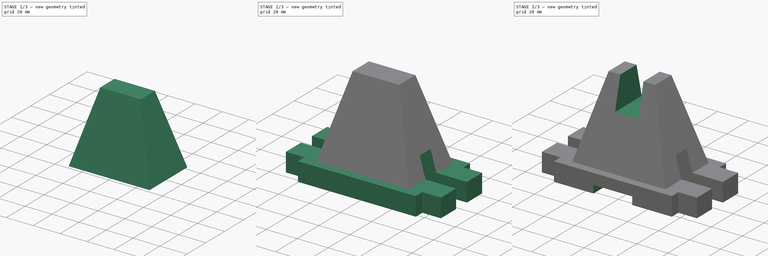
[diagram: build sequence overview — one tinted view per stage of 3, left to right]
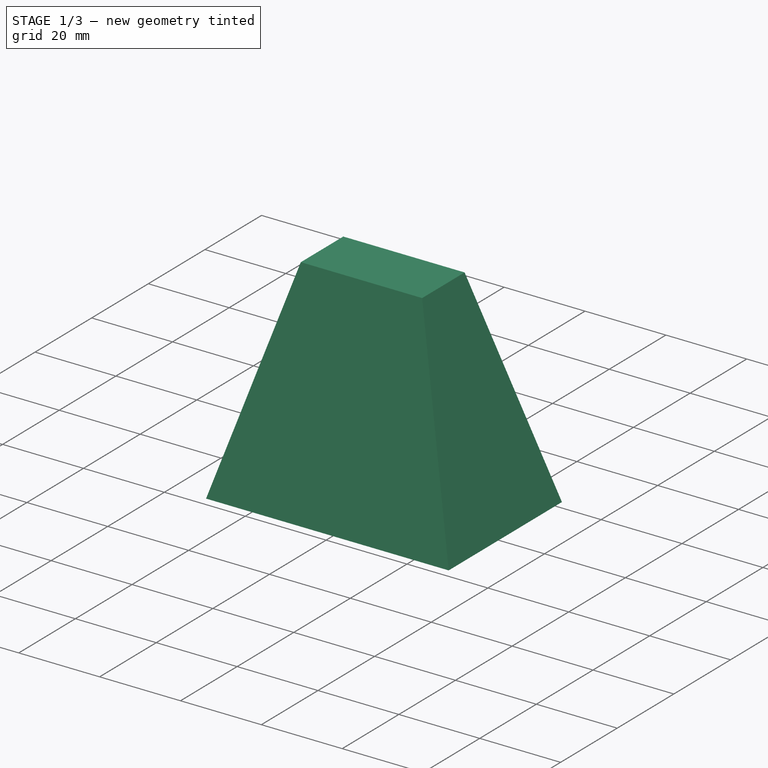
[diagram: stage 1 of 3 — iso view after this stage's code; geometry added in this stage tinted green]
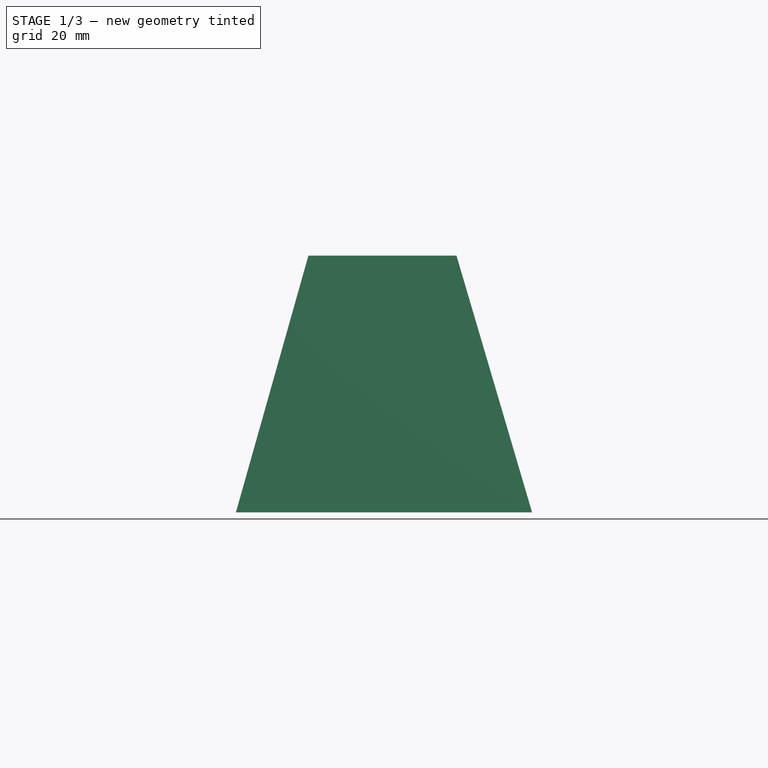
[diagram: stage 1 of 3 — front view after this stage's code; geometry added in this stage tinted green]
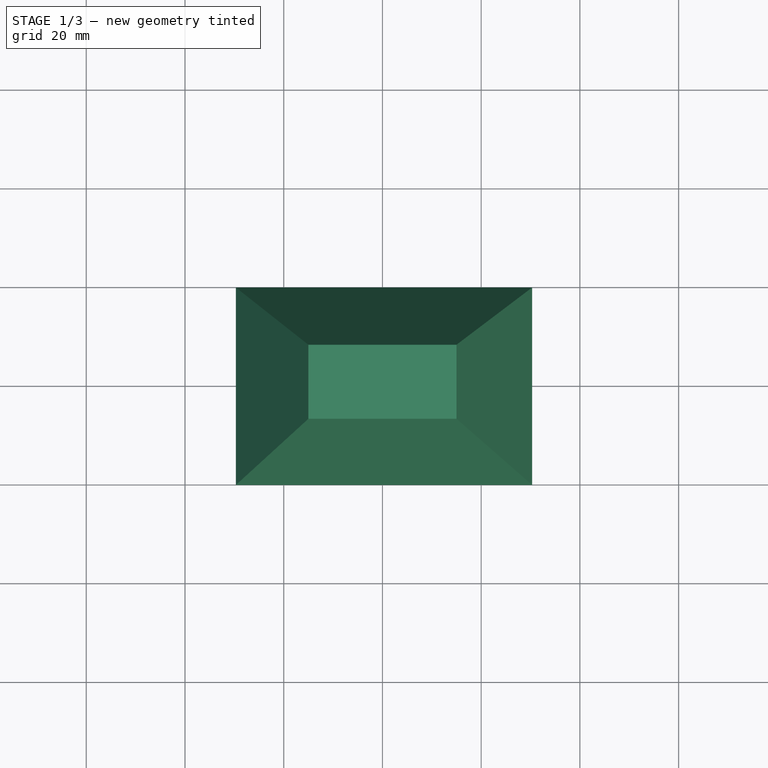
[diagram: stage 1 of 3 — top view after this stage's code; geometry added in this stage tinted green]
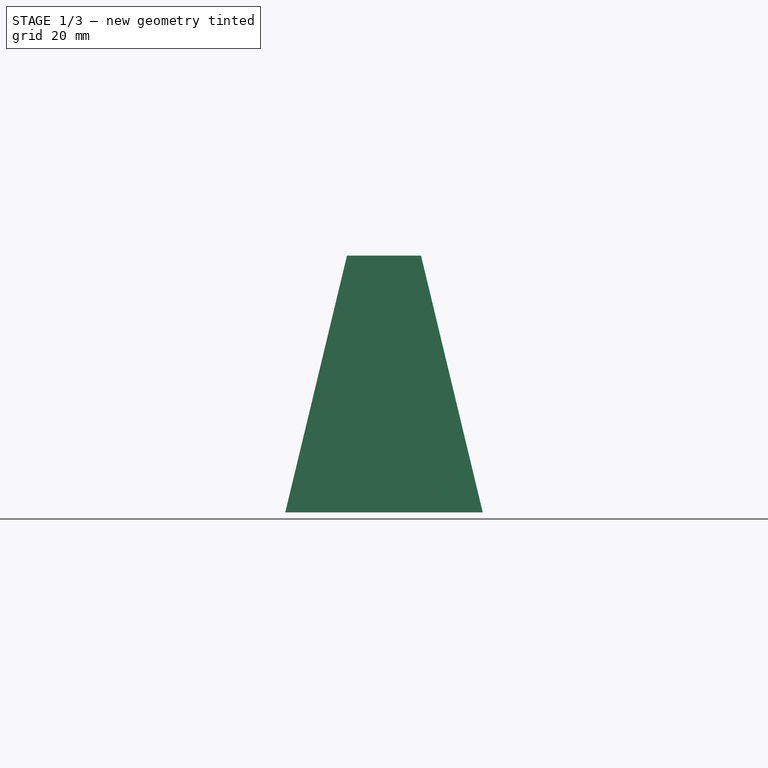
[diagram: stage 1 of 3 — right view after this stage's code; geometry added in this stage tinted green]
FCSTD DOCUMENT  (FreeCAD 0.14R3702 (Git))
Label: ejer10
License: CC-BY 3.0
LicenseURL: http://creativecommons.org/licenses/by/3.0/
objects: Sketcher::SketchObject×6, PartDesign::Pocket×3, PartDesign::Pad×1, Part::Loft×1, Part::MultiFuse×1
note: 16 computed .brp shape members not serialized (recipe doc carries the construction recipe); baked Part::Feature solids carry a one-line shape summary decoded from their .brp

FEATURE [Sketcher::SketchObject] Sketch
  sketch-geometry (12):
    g0: LineSegment StartX=-38 StartY=-25 StartZ=0 EndX=38 EndY=-25 EndZ=0
    g1: LineSegment StartX=38 StartY=-25 StartZ=0 EndX=38 EndY=-19 EndZ=0
    g2: LineSegment StartX=38 StartY=-19 StartZ=0 EndX=50 EndY=-19 EndZ=0
    g3: LineSegment StartX=50 StartY=-19 StartZ=0 EndX=50 EndY=19 EndZ=0
    g4: LineSegment StartX=50 StartY=19 StartZ=0 EndX=38 EndY=19 EndZ=0
    g5: LineSegment StartX=38 StartY=19 StartZ=0 EndX=38 EndY=25 EndZ=0
    g6: LineSegment StartX=38 StartY=25 StartZ=0 EndX=-38 EndY=25 EndZ=0
    g7: LineSegment StartX=-38 StartY=25 StartZ=0 EndX=-38 EndY=19 EndZ=0
    g8: LineSegment StartX=-38 StartY=19 StartZ=0 EndX=-50 EndY=19 EndZ=0
    g9: LineSegment StartX=-50 StartY=19 StartZ=0 EndX=-50 EndY=-19 EndZ=0
    g10: LineSegment StartX=-50 StartY=-19 StartZ=0 EndX=-38 EndY=-19 EndZ=0
    g11: LineSegment StartX=-38 StartY=-19 StartZ=0 EndX=-38 EndY=-25 EndZ=0
  constraints (38):
    c: Horizontal(g0)
    c: Coincident(g0,g1)
    c: Coincident(g1,g2)
    c: Coincident(g2,g3)
    c: Vertical(g3)
    c: Coincident(g3,g4)
    c: Coincident(g4,g5)
    c: Coincident(g5,g6)
    c: Coincident(g6,g7)
    c: Coincident(g7,g8)
    c: Coincident(g8,g9)
    c: Vertical(g9)
    c: Horizontal(g10)
    c: Coincident(g10,g11)
    c: Coincident(g0,g11)
    c: Horizontal(g8)
    c: Horizontal(g4)
    c: Vertical(g11)
    c: Vertical(g7)
    c: Vertical(g5)
    c: Vertical(g1)
    c: Horizontal(g2)
    c: Equal(g6,g0)
    c: DistanceX(g6) = -76
    c: Equal(g3,g9)
    c: DistanceY(g3) = 38
    c: Coincident(g10,g9)
    c: Equal(g7,g5)
    c: Equal(g5,g1)
    c: Equal(g1,g11)
    c: DistanceY(g11) = -6
    c: Equal(g2,g4)
    c: Equal(g4,g8)
    c: Equal(g8,g10)
    c: DistanceX(g10) = 12
    c: Symmetric(g5,g6,g-2)
    c: Symmetric(g0,g6,g-1)
    c: DistanceX(g3,g8) = -100
FEATURE [PartDesign::Pad] Pad
  Length = 12
  Length2 = 100
  Sketch = -> Sketch
  Type = 0
FEATURE [Sketcher::SketchObject] Sketch001
  ExternalGeometry = -> [Pad]
  Placement = pos=(0,0,12) rot=(0,0,1;0rad)
  Support = -> Pad [Face14]
  sketch-geometry (4):
    g0: LineSegment StartX=-29.6845 StartY=20 StartZ=0 EndX=30.3155 EndY=20 EndZ=0
    g1: LineSegment StartX=30.3155 StartY=20 StartZ=0 EndX=30.3155 EndY=-20 EndZ=0
    g2: LineSegment StartX=30.3155 StartY=-20 StartZ=0 EndX=-29.6845 EndY=-20 EndZ=0
    g3: LineSegment StartX=-29.6845 StartY=-20 StartZ=0 EndX=-29.6845 EndY=20 EndZ=0
  constraints (11):
    c: Coincident(g0,g1)
    c: Coincident(g1,g2)
    c: Coincident(g2,g3)
    c: Coincident(g3,g0)
    c: Horizontal(g0)
    c: Horizontal(g2)
    c: Vertical(g1)
    c: Vertical(g3)
    c: Symmetric(g0,g2,g-1)
    c: DistanceX(g0) = 60
    c: DistanceY(g1) = -40
FEATURE [Sketcher::SketchObject] Sketch002
  Placement = pos=(0,0,64) rot=(0,0,1;0rad)
  sketch-geometry (4):
    g0: LineSegment StartX=-15 StartY=7.5 StartZ=0 EndX=15 EndY=7.5 EndZ=0
    g1: LineSegment StartX=15 StartY=7.5 StartZ=0 EndX=15 EndY=-7.5 EndZ=0
    g2: LineSegment StartX=15 StartY=-7.5 StartZ=0 EndX=-15 EndY=-7.5 EndZ=0
    g3: LineSegment StartX=-15 StartY=-7.5 StartZ=0 EndX=-15 EndY=7.5 EndZ=0
  constraints (12):
    c: Coincident(g0,g1)
    c: Coincident(g1,g2)
    c: Coincident(g2,g3)
    c: Coincident(g3,g0)
    c: Horizontal(g0)
    c: Horizontal(g2)
    c: Vertical(g1)
    c: Vertical(g3)
    c: Symmetric(g0,g0,g-2)
    c: Symmetric(g2,g0,g-1)
    c: DistanceX(g2) = -30
    c: DistanceY(g3) = 15
FEATURE [Part::Loft] Loft
  Closed = false
  Ruled = false
  Sections = -> [Sketch002,Sketch001]
  Solid = true
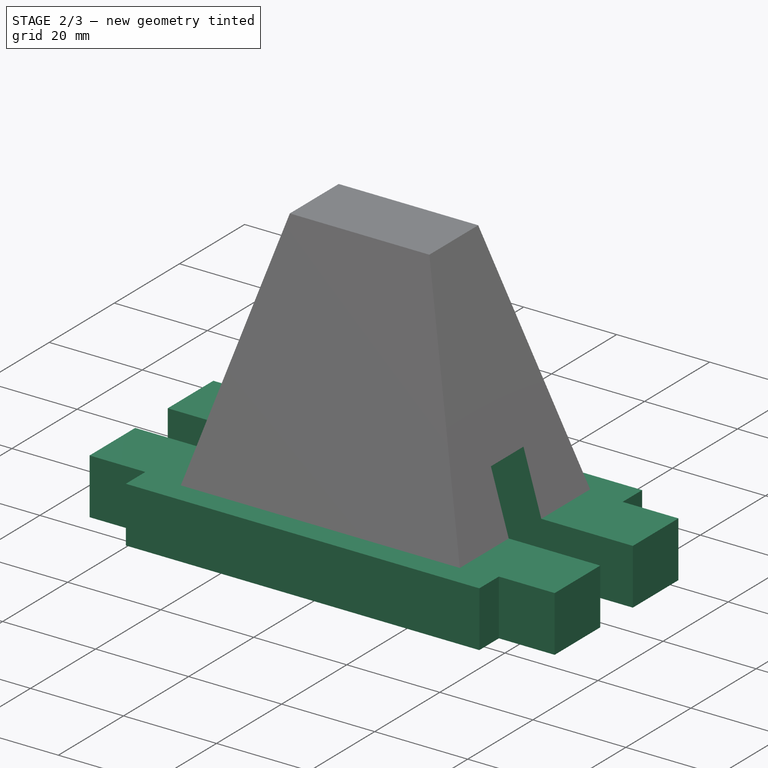
[diagram: stage 2 of 3 — iso view after this stage's code; geometry added in this stage tinted green]
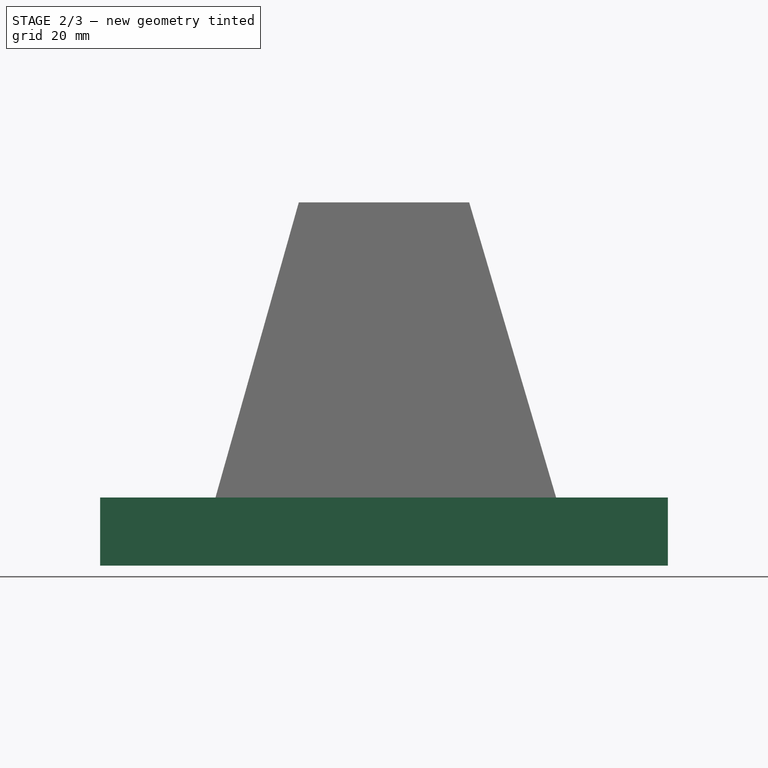
[diagram: stage 2 of 3 — front view after this stage's code; geometry added in this stage tinted green]
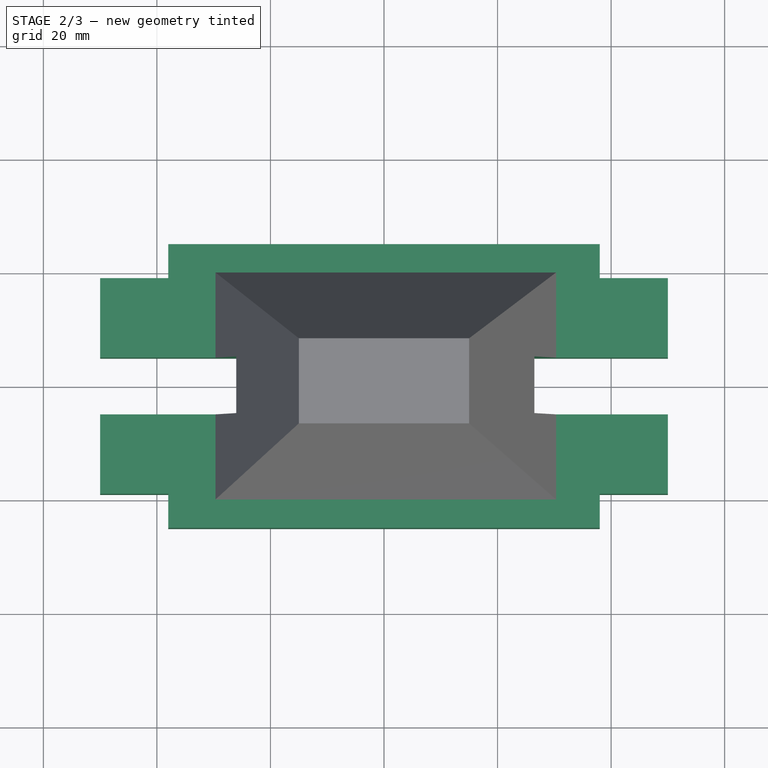
[diagram: stage 2 of 3 — top view after this stage's code; geometry added in this stage tinted green]
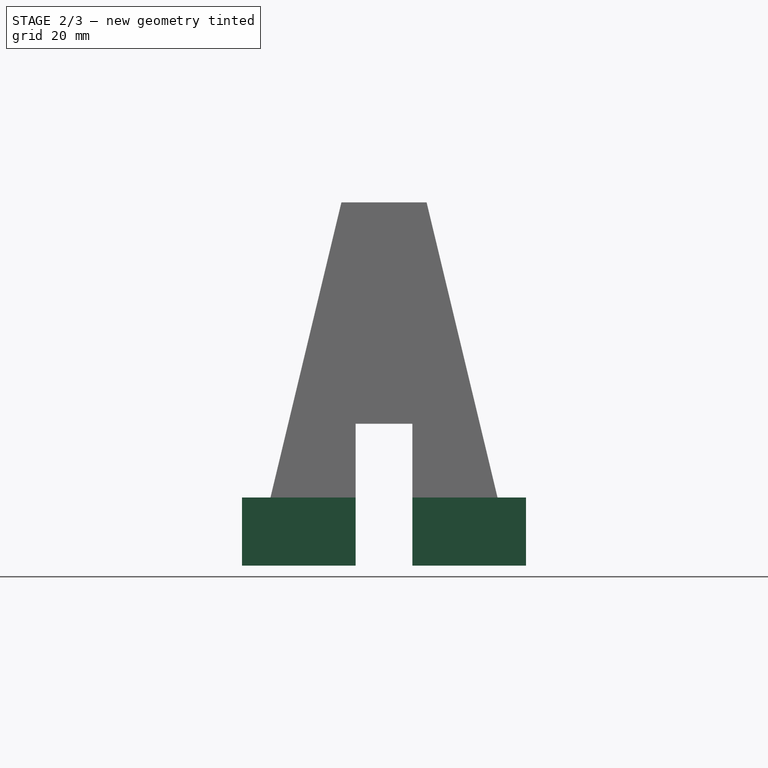
[diagram: stage 2 of 3 — right view after this stage's code; geometry added in this stage tinted green]
FEATURE [Part::MultiFuse] Fusion
  Shapes = -> [Pad,Loft]
FEATURE [Sketcher::SketchObject] Sketch003
  Placement = pos=(50,0,0) rot=(0.57735,0.57735,0.57735;2.0944rad)
  Support = -> Fusion [Face8]
  sketch-geometry (4):
    g0: LineSegment StartX=-5 StartY=0 StartZ=0 EndX=5 EndY=0 EndZ=0
    g1: LineSegment StartX=5 StartY=0 StartZ=0 EndX=5 EndY=25 EndZ=0
    g2: LineSegment StartX=5 StartY=25 StartZ=0 EndX=-5 EndY=25 EndZ=0
    g3: LineSegment StartX=-5 StartY=25 StartZ=0 EndX=-5 EndY=0 EndZ=0
  constraints (12):
    c: Coincident(g0,g1)
    c: Coincident(g1,g2)
    c: Coincident(g2,g3)
    c: Coincident(g3,g0)
    c: Horizontal(g0)
    c: Horizontal(g2)
    c: Vertical(g1)
    c: Vertical(g3)
    c: Symmetric(g1,g2,g-2)
    c: PointOnObject(g0,g-1)
    c: DistanceY(g3) = -25
    c: DistanceX(g2) = -10
FEATURE [PartDesign::Pocket] Pocket
  Length = 5
  Sketch = -> Sketch003
  Type = 1
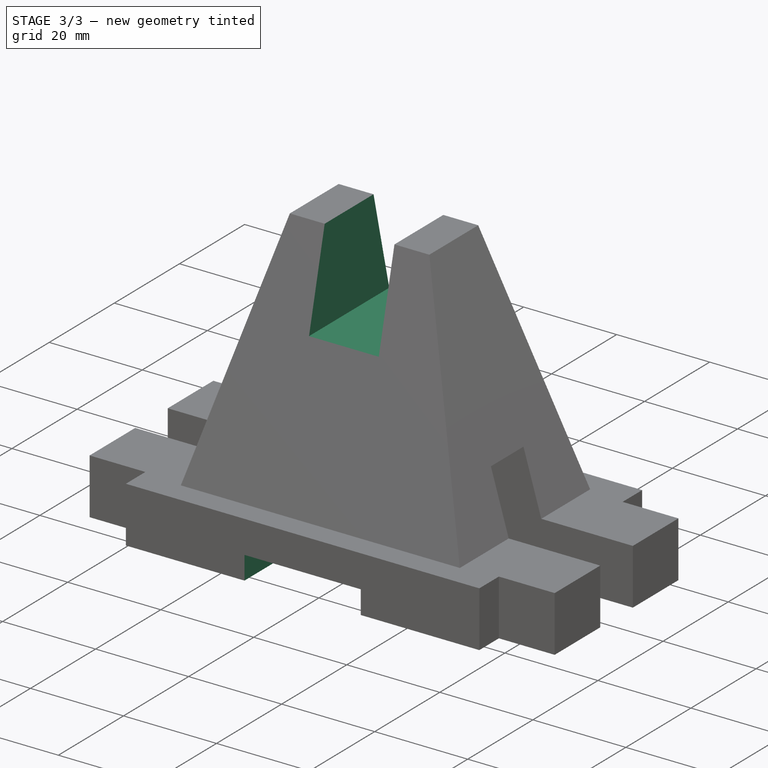
[diagram: stage 3 of 3 — iso view after this stage's code; geometry added in this stage tinted green]
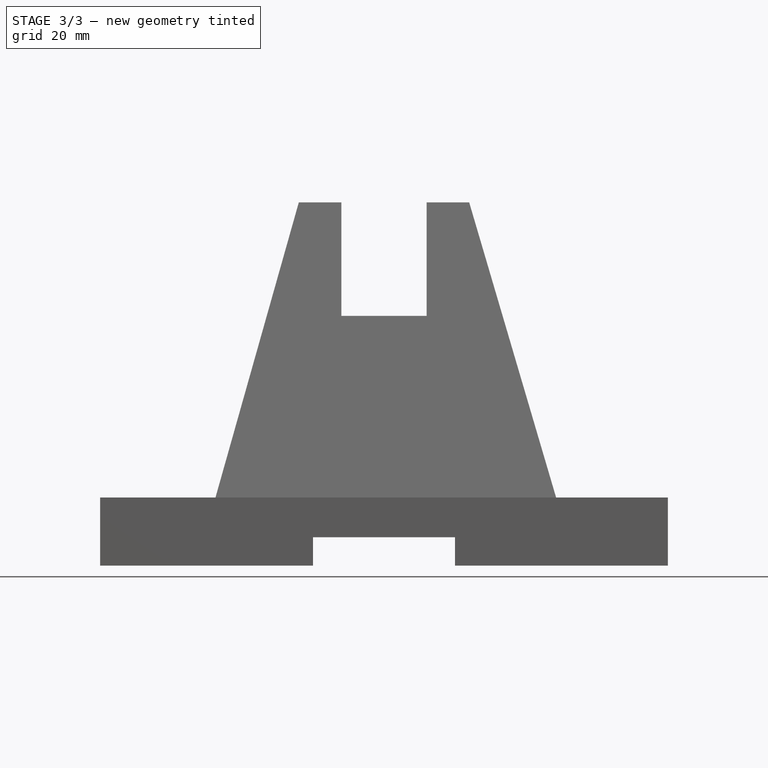
[diagram: stage 3 of 3 — front view after this stage's code; geometry added in this stage tinted green]
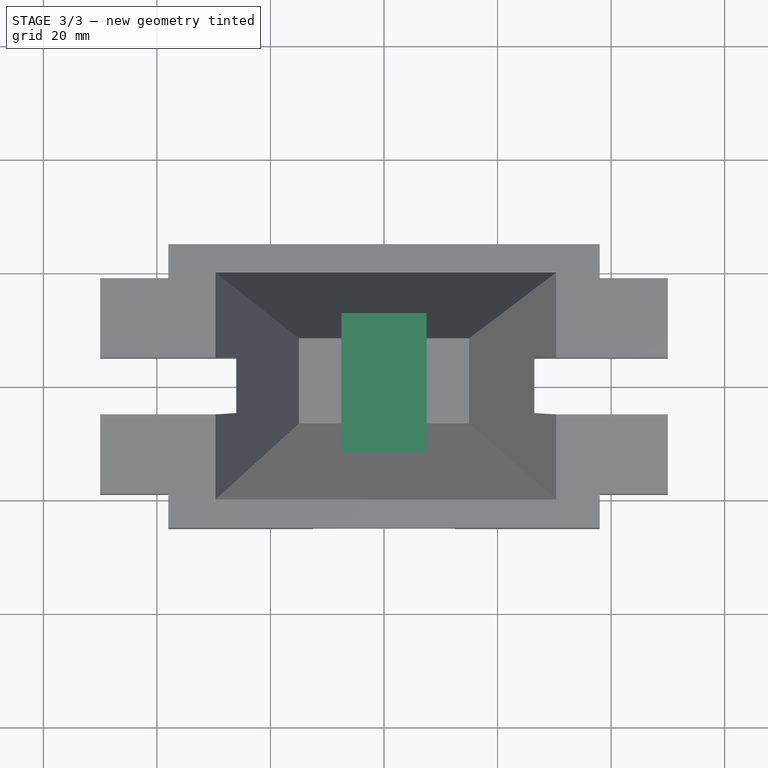
[diagram: stage 3 of 3 — top view after this stage's code; geometry added in this stage tinted green]
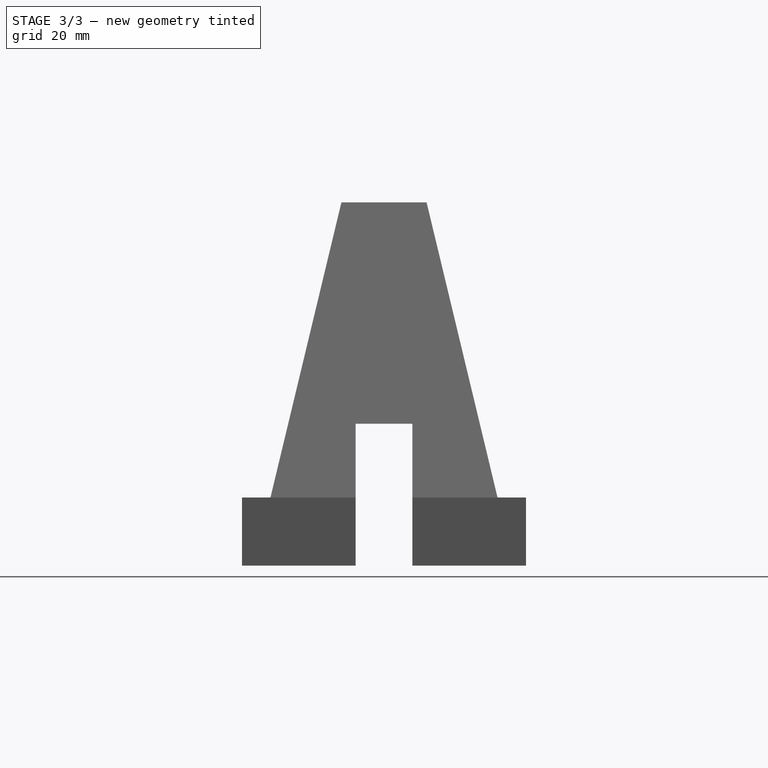
[diagram: stage 3 of 3 — right view after this stage's code; geometry added in this stage tinted green]
FEATURE [Sketcher::SketchObject] Sketch004
  Placement = pos=(0,0,64) rot=(0,0,1;0rad)
  Support = -> Pocket [Face18]
  sketch-geometry (4):
    g0: LineSegment StartX=-7.5 StartY=15.7585 StartZ=0 EndX=7.5 EndY=15.7585 EndZ=0
    g1: LineSegment StartX=7.5 StartY=15.7585 StartZ=0 EndX=7.5 EndY=-15.7585 EndZ=0
    g2: LineSegment StartX=7.5 StartY=-15.7585 StartZ=0 EndX=-7.5 EndY=-15.7585 EndZ=0
    g3: LineSegment StartX=-7.5 StartY=-15.7585 StartZ=0 EndX=-7.5 EndY=15.7585 EndZ=0
  constraints (11):
    c: Coincident(g0,g1)
    c: Coincident(g1,g2)
    c: Coincident(g2,g3)
    c: Coincident(g3,g0)
    c: Horizontal(g0)
    c: Horizontal(g2)
    c: Vertical(g1)
    c: Vertical(g3)
    c: Symmetric(g1,g0,g-1)
    c: Symmetric(g0,g0,g-2)
    c: DistanceX(g0) = 15
FEATURE [PartDesign::Pocket] Pocket001
  Length = 20
  Sketch = -> Sketch004
  Type = 0
FEATURE [Sketcher::SketchObject] Sketch005
  Placement = pos=(0,-25,0) rot=(1,0,0;1.5708rad)
  Support = -> Pocket001 [Face1]
  sketch-geometry (4):
    g0: LineSegment StartX=-12.5 StartY=0 StartZ=0 EndX=12.5 EndY=0 EndZ=0
    g1: LineSegment StartX=12.5 StartY=0 StartZ=0 EndX=12.5 EndY=5 EndZ=0
    g2: LineSegment StartX=12.5 StartY=5 StartZ=0 EndX=-12.5 EndY=5 EndZ=0
    g3: LineSegment StartX=-12.5 StartY=5 StartZ=0 EndX=-12.5 EndY=0 EndZ=0
  constraints (12):
    c: Coincident(g0,g1)
    c: Coincident(g1,g2)
    c: Coincident(g2,g3)
    c: Coincident(g3,g0)
    c: Horizontal(g0)
    c: Horizontal(g2)
    c: Vertical(g1)
    c: Vertical(g3)
    c: DistanceX(g0) = 25
    c: DistanceY(g3) = -5
    c: Symmetric(g1,g2,g-2)
    c: PointOnObject(g0,g-1)
FEATURE [PartDesign::Pocket] Pocket002
  Length = 5
  Sketch = -> Sketch005
  Type = 1
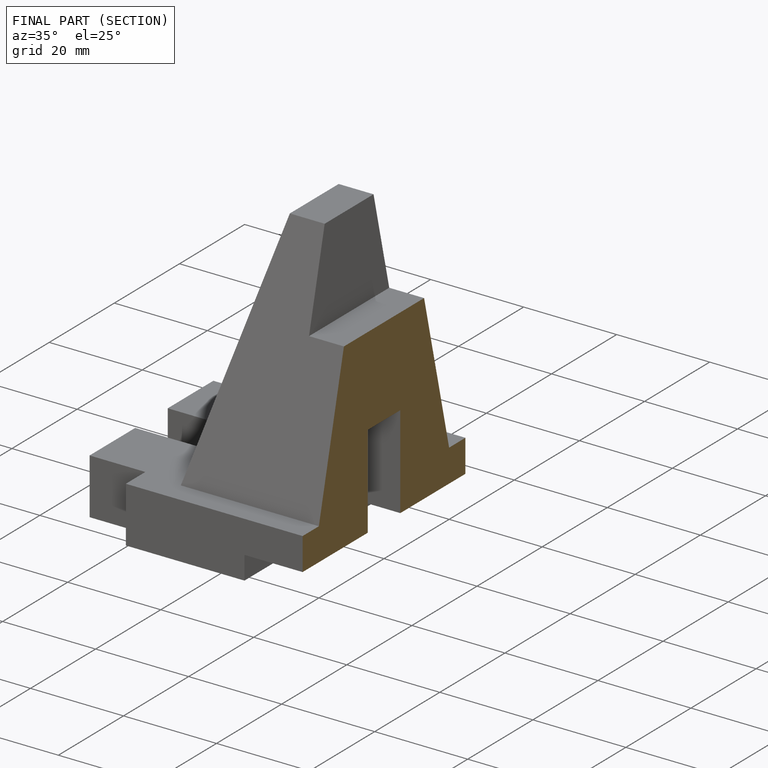
[diagram: finished part — half-section view (interior)]
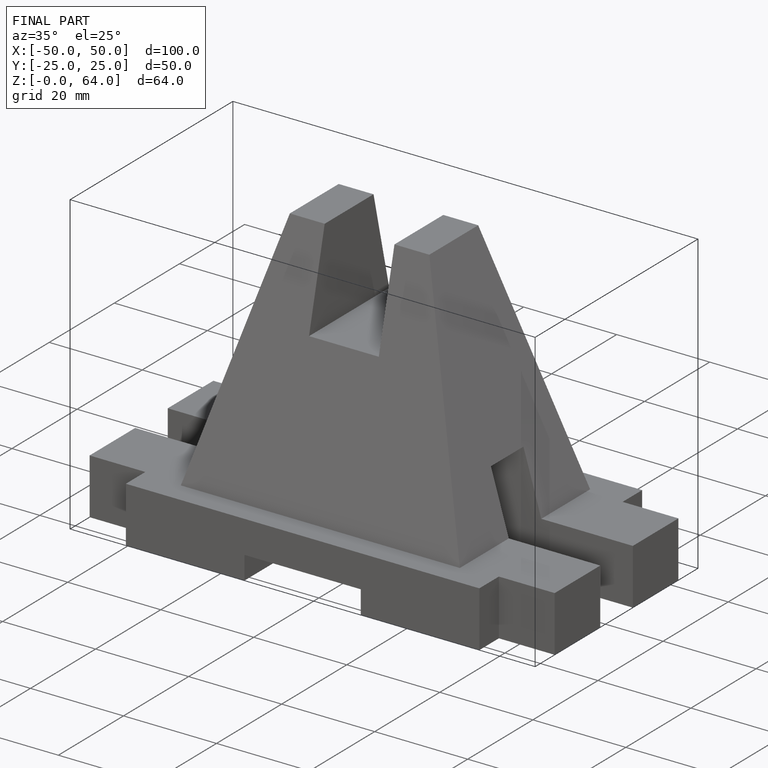
[diagram: finished part — iso view with bounding-box wireframe]
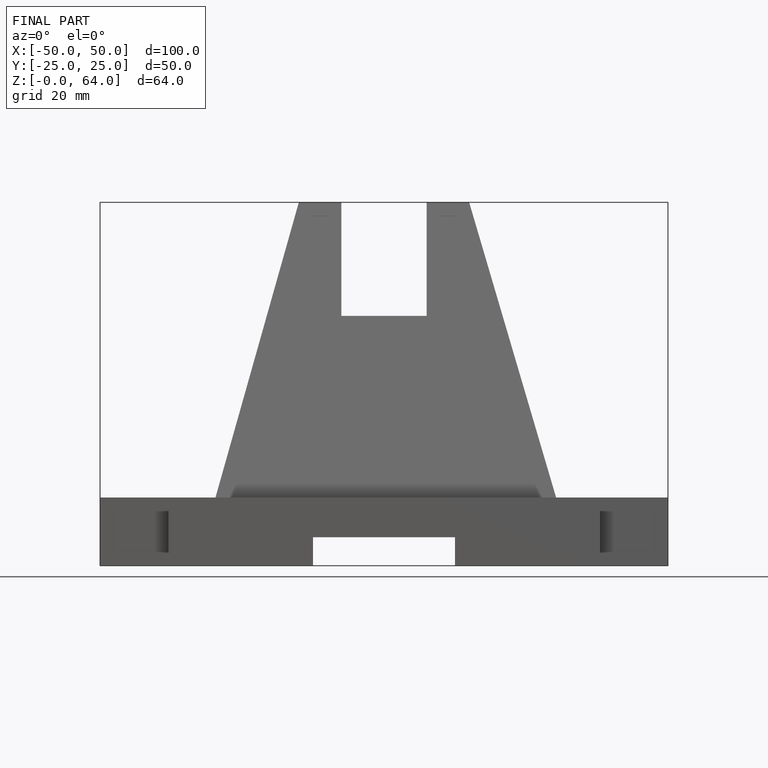
[diagram: finished part — front view with bounding-box wireframe]
